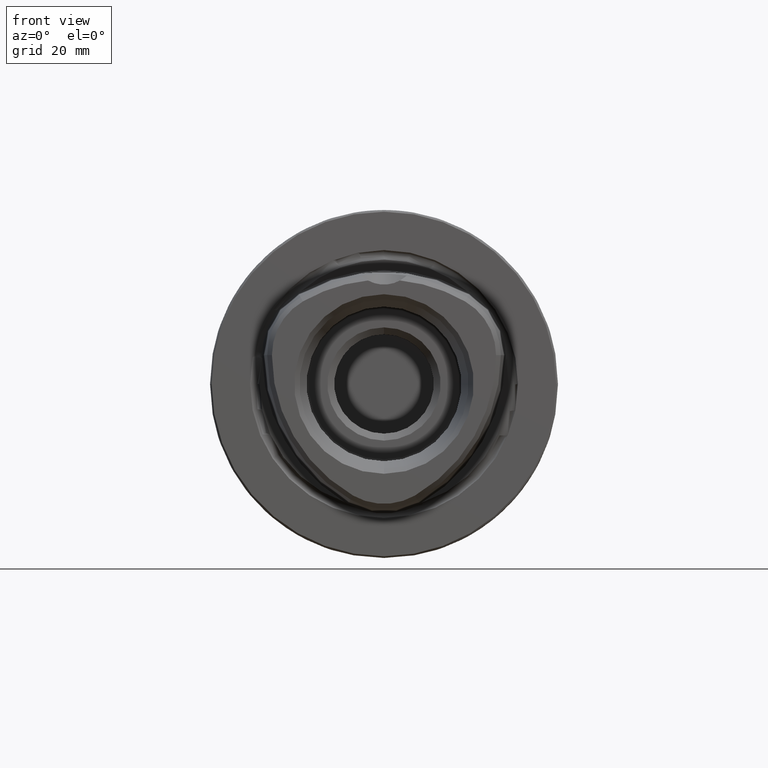
[diagram: clean part render]
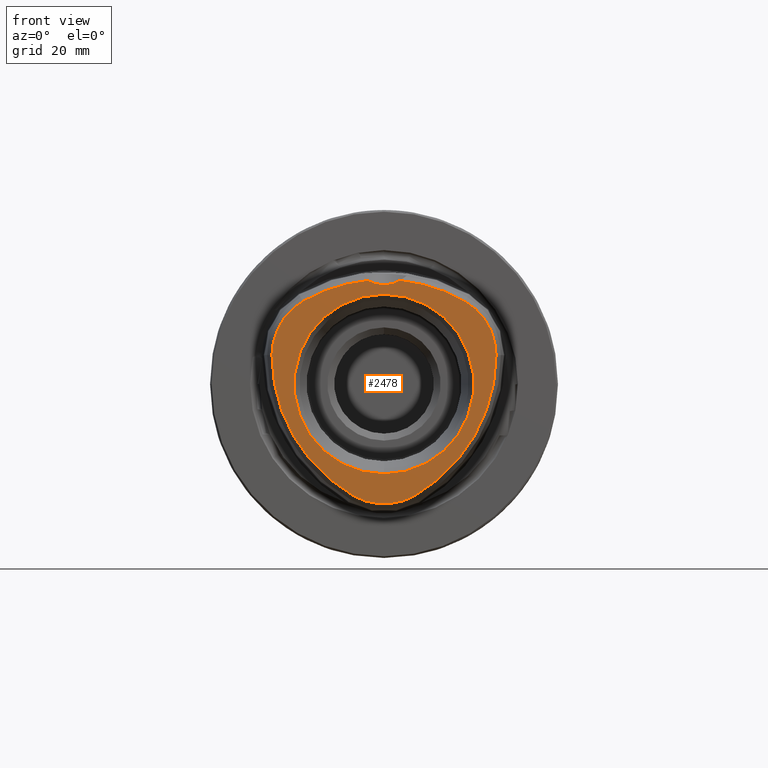
[diagram: same view with one face highlighted and labeled with its STEP entity id]
A machine part, front view. The second image highlights one B-rep face of the part: STEP entity #2478.
In plain terms, the highlighted planar face has unit normal (0, 1, 0).
Its self-contained STEP definition (entity closure, byte-faithful):
#414=CARTESIAN_POINT('',(0.E0,-3.8E1,-1.044974226119E1));
#415=DIRECTION('',(0.E0,-1.E0,0.E0));
#416=DIRECTION('',(5.E-1,0.E0,8.660254037844E-1));
#417=AXIS2_PLACEMENT_3D('',#414,#415,#416);
#419=CARTESIAN_POINT('',(9.049742261193E0,-3.8E1,5.224871130597E0));
#420=DIRECTION('',(0.E0,-1.E0,0.E0));
#421=DIRECTION('',(1.E0,0.E0,0.E0));
#422=AXIS2_PLACEMENT_3D('',#419,#420,#421);
#424=CARTESIAN_POINT('',(-9.049742261193E0,-3.8E1,5.224871130596E0));
#425=DIRECTION('',(0.E0,-1.E0,0.E0));
#426=DIRECTION('',(5.E-1,0.E0,-8.660254037844E-1));
#427=AXIS2_PLACEMENT_3D('',#424,#425,#426);
#429=CARTESIAN_POINT('',(9.049742261193E0,-3.8E1,5.224871130597E0));
#430=DIRECTION('',(0.E0,-1.E0,0.E0));
#431=DIRECTION('',(-1.E0,0.E0,-1.059442426042E-14));
#432=AXIS2_PLACEMENT_3D('',#429,#430,#431);
#434=CARTESIAN_POINT('',(-9.049742261193E0,-3.8E1,5.224871130596E0));
#435=DIRECTION('',(0.E0,-1.E0,0.E0));
#436=DIRECTION('',(-5.E-1,0.E0,8.660254037844E-1));
#437=AXIS2_PLACEMENT_3D('',#434,#435,#436);
#439=CARTESIAN_POINT('',(0.E0,-3.8E1,-1.044974226119E1));
#440=DIRECTION('',(0.E0,-1.E0,0.E0));
#441=DIRECTION('',(-9.890189476867E-2,0.E0,9.950971888269E-1));
#442=AXIS2_PLACEMENT_3D('',#439,#440,#441);
#444=CARTESIAN_POINT('',(0.E0,-3.8E1,0.E0));
#445=DIRECTION('',(0.E0,-1.E0,0.E0));
#446=DIRECTION('',(0.E0,0.E0,1.E0));
#447=AXIS2_PLACEMENT_3D('',#444,#445,#446);
#449=CARTESIAN_POINT('',(0.E0,-3.8E1,0.E0));
#450=DIRECTION('',(0.E0,-1.E0,0.E0));
#451=DIRECTION('',(0.E0,0.E0,-1.E0));
#452=AXIS2_PLACEMENT_3D('',#449,#450,#451);
#454=CARTESIAN_POINT('',(0.E0,-3.8E1,2.4E1));
#455=DIRECTION('',(0.E0,1.E0,0.E0));
#456=DIRECTION('',(4.836645555972E-1,0.E0,-8.752534476704E-1));
#457=AXIS2_PLACEMENT_3D('',#454,#455,#456);
#672=CARTESIAN_POINT('',(0.E0,-3.8E1,-1.044974226119E1));
#673=DIRECTION('',(0.E0,-1.E0,0.E0));
#674=DIRECTION('',(-5.E-1,0.E0,-8.660254037844E-1));
#675=AXIS2_PLACEMENT_3D('',#672,#673,#674);
#1986=CARTESIAN_POINT('',(2.901987333583E0,-3.8E1,1.874847931398E1));
#1987=CARTESIAN_POINT('',(-2.901987333583E0,-3.8E1,1.874847931398E1));
#1988=VERTEX_POINT('',#1986);
#1989=VERTEX_POINT('',#1987);
#2062=CARTESIAN_POINT('',(0.E0,-3.8E1,1.626342788115E1));
#2063=CARTESIAN_POINT('',(0.E0,-3.8E1,-1.626342788115E1));
#2064=VERTEX_POINT('',#2062);
#2065=VERTEX_POINT('',#2063);
#2070=CARTESIAN_POINT('',(5.621297865849E0,-3.8E1,-2.018611576932E1));
#2071=CARTESIAN_POINT('',(2.029233799289E1,-3.8E1,5.224871130597E0));
#2072=VERTEX_POINT('',#2070);
#2073=VERTEX_POINT('',#2071);
#2074=CARTESIAN_POINT('',(1.467104012704E1,-3.8E1,1.496124463872E1));
#2075=VERTEX_POINT('',#2074);
#2076=CARTESIAN_POINT('',(-1.467104012704E1,-3.8E1,1.496124463872E1));
#2077=CARTESIAN_POINT('',(-2.029233799289E1,-3.8E1,5.224871130596E0));
#2078=VERTEX_POINT('',#2076);
#2079=VERTEX_POINT('',#2077);
#2080=CARTESIAN_POINT('',(-5.621297865849E0,-3.8E1,-2.018611576932E1));
#2081=VERTEX_POINT('',#2080);
#2450=CARTESIAN_POINT('',(0.E0,-3.8E1,0.E0));
#2451=DIRECTION('',(0.E0,1.E0,0.E0));
#2452=DIRECTION('',(1.E0,0.E0,0.E0));
#2453=AXIS2_PLACEMENT_3D('',#2450,#2451,#2452);
#2454=PLANE('',#2453);
#2456=ORIENTED_EDGE('',*,*,#2455,.F.);
#2458=ORIENTED_EDGE('',*,*,#2457,.F.);
#2460=ORIENTED_EDGE('',*,*,#2459,.F.);
#2461=ORIENTED_EDGE('',*,*,#2440,.F.);
#2463=ORIENTED_EDGE('',*,*,#2462,.F.);
#2465=ORIENTED_EDGE('',*,*,#2464,.F.);
#2467=ORIENTED_EDGE('',*,*,#2466,.F.);
#2469=ORIENTED_EDGE('',*,*,#2468,.F.);
#2470=EDGE_LOOP('',(#2456,#2458,#2460,#2461,#2463,#2465,#2467,#2469));
#2471=FACE_OUTER_BOUND('',#2470,.F.);
#2473=ORIENTED_EDGE('',*,*,#2472,.T.);
#2475=ORIENTED_EDGE('',*,*,#2474,.T.);
#2476=EDGE_LOOP('',(#2473,#2475));
#2477=FACE_BOUND('',#2476,.F.);
#2478=ADVANCED_FACE('',(#2471,#2477),#2454,.F.);
#418=CIRCLE('',#417,2.934208025408E1);
#423=CIRCLE('',#422,1.124259573170E1);
#428=CIRCLE('',#427,2.934208025408E1);
#433=CIRCLE('',#432,2.934208025408E1);
#438=CIRCLE('',#437,1.124259573170E1);
#443=CIRCLE('',#442,2.934208025408E1);
#448=CIRCLE('',#447,1.626342788115E1);
#453=CIRCLE('',#452,1.626342788115E1);
#458=CIRCLE('',#457,6.E0);
#676=CIRCLE('',#675,1.124259573170E1);
#2440=EDGE_CURVE('',#2072,#2073,#428,.T.);
#2455=EDGE_CURVE('',#1988,#1989,#458,.T.);
#2457=EDGE_CURVE('',#2075,#1988,#418,.T.);
#2459=EDGE_CURVE('',#2073,#2075,#423,.T.);
#2462=EDGE_CURVE('',#2081,#2072,#676,.T.);
#2464=EDGE_CURVE('',#2079,#2081,#433,.T.);
#2466=EDGE_CURVE('',#2078,#2079,#438,.T.);
#2468=EDGE_CURVE('',#1989,#2078,#443,.T.);
#2472=EDGE_CURVE('',#2064,#2065,#448,.T.);
#2474=EDGE_CURVE('',#2065,#2064,#453,.T.);